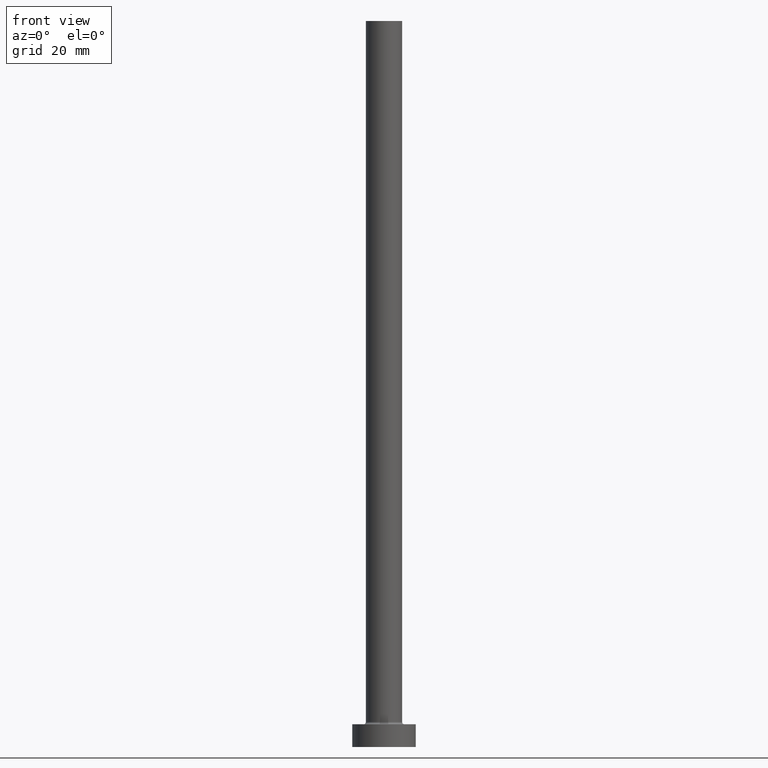
[diagram: clean part render]
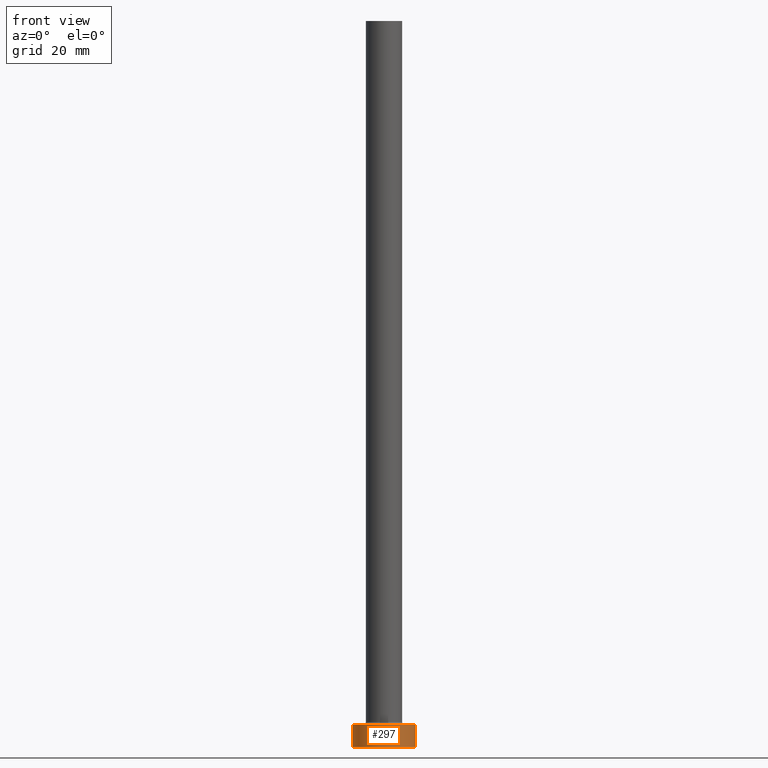
[diagram: same view with one face highlighted and labeled with its STEP entity id]
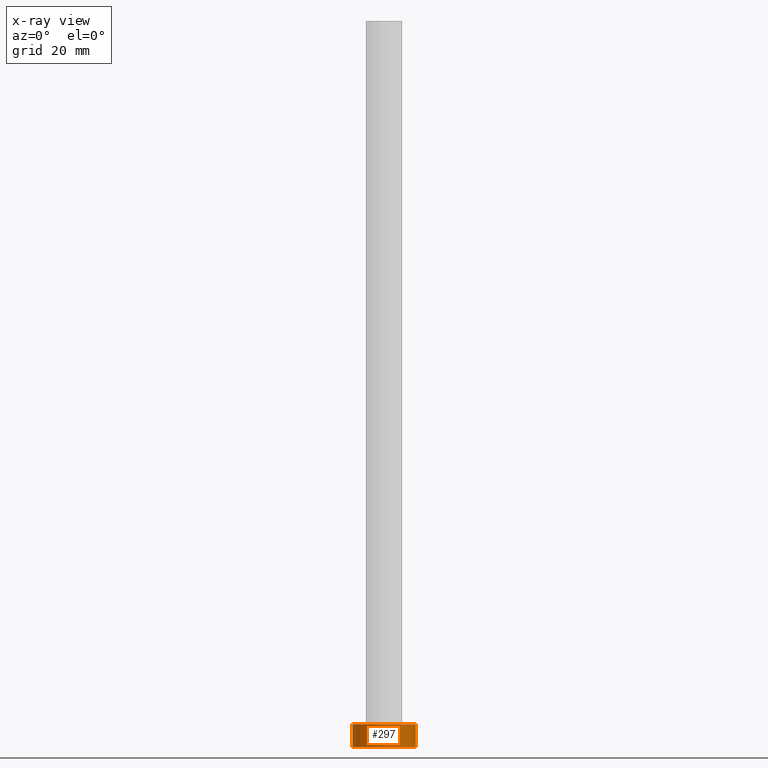
[diagram: x-ray of the same camera — body ghosted, the highlighted face saturated]
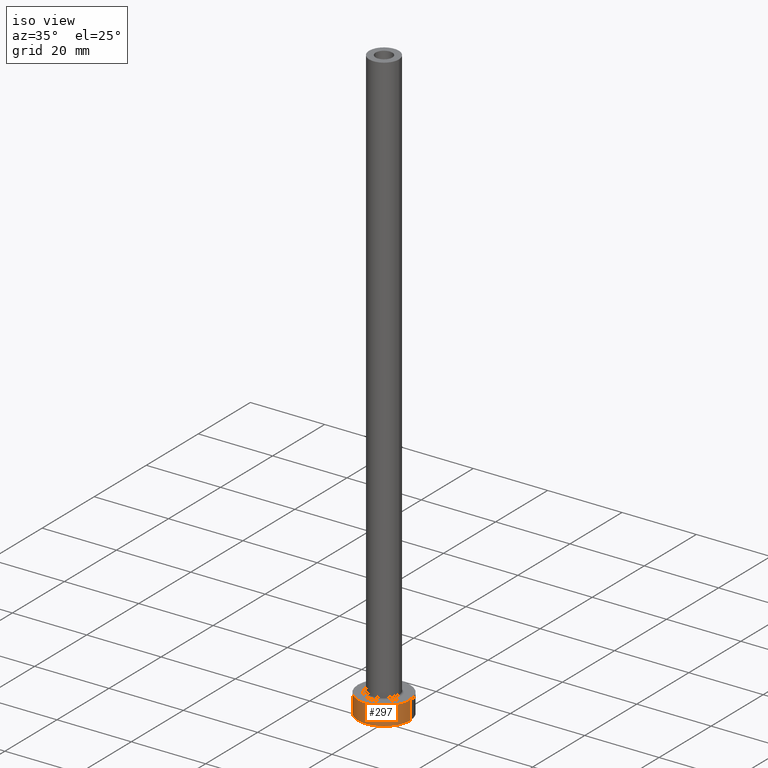
[diagram: same view with one face highlighted and labeled with its STEP entity id]
A machine part, front view. The second image highlights one B-rep face of the part: STEP entity #297.
The next image is the same camera in x-ray: the body ghosted, the highlighted face saturated — about 0% of this face is hidden behind the body in this view.
A second angle (iso view) of the same face is appended — the face is thin or edge-on in the first view.
In plain terms, the highlighted cylindrical surface (edge-blend (fillet) strip) has radius 7 mm, axis along (-0, -0, -1).
Its self-contained STEP definition (entity closure, byte-faithful):
#28 = CARTESIAN_POINT ( 'NONE',  ( 0.000000000000000000, 0.000000000000000000, 5.000000000000000000 ) ) ;
#33 = DIRECTION ( 'NONE',  ( 0.000000000000000000, 0.000000000000000000, 1.000000000000000000 ) ) ;
#49 = AXIS2_PLACEMENT_3D ( 'NONE', #222, #33, #75 ) ;
#58 = VERTEX_POINT ( 'NONE', #300 ) ;
#60 = FACE_OUTER_BOUND ( 'NONE', #449, .T. ) ;
#75 = DIRECTION ( 'NONE',  ( 1.000000000000000000, 0.000000000000000000, 0.000000000000000000 ) ) ;
#98 = ORIENTED_EDGE ( 'NONE', *, *, #244, .T. ) ;
#104 = CYLINDRICAL_SURFACE ( 'NONE', #120, 7.000000000000000000 ) ;
#105 = VECTOR ( 'NONE', #419, 1000.000000000000000 ) ;
#107 = CARTESIAN_POINT ( 'NONE',  ( -7.000000000000000000, 0.000000000000000000, 5.000000000000000000 ) ) ;
#109 = VERTEX_POINT ( 'NONE', #322 ) ;
#120 = AXIS2_PLACEMENT_3D ( 'NONE', #28, #205, #175 ) ;
#126 = DIRECTION ( 'NONE',  ( 0.000000000000000000, 0.000000000000000000, 1.000000000000000000 ) ) ;
#134 = EDGE_CURVE ( 'NONE', #109, #58, #373, .T. ) ;
#138 = CARTESIAN_POINT ( 'NONE',  ( 7.000000000000000000, 8.572527594031473190E-16, 5.000000000000000000 ) ) ;
#161 = LINE ( 'NONE', #107, #290 ) ;
#175 = DIRECTION ( 'NONE',  ( -1.000000000000000000, 0.000000000000000000, 0.000000000000000000 ) ) ;
#182 = ORIENTED_EDGE ( 'NONE', *, *, #311, .F. ) ;
#197 = CIRCLE ( 'NONE', #49, 7.000000000000000000 ) ;
#205 = DIRECTION ( 'NONE',  ( -0.000000000000000000, -0.000000000000000000, -1.000000000000000000 ) ) ;
#208 = LINE ( 'NONE', #348, #105 ) ;
#222 = CARTESIAN_POINT ( 'NONE',  ( 0.000000000000000000, 0.000000000000000000, 5.000000000000000000 ) ) ;
#237 = EDGE_CURVE ( 'NONE', #354, #58, #208, .T. ) ;
#244 = EDGE_CURVE ( 'NONE', #387, #109, #161, .T. ) ;
#275 = ORIENTED_EDGE ( 'NONE', *, *, #134, .T. ) ;
#279 = ORIENTED_EDGE ( 'NONE', *, *, #237, .F. ) ;
#284 = DIRECTION ( 'NONE',  ( -0.000000000000000000, -0.000000000000000000, -1.000000000000000000 ) ) ;
#290 = VECTOR ( 'NONE', #284, 1000.000000000000000 ) ;
#295 = CARTESIAN_POINT ( 'NONE',  ( -7.000000000000000000, 0.000000000000000000, 5.000000000000000000 ) ) ;
#297 = ADVANCED_FACE ( 'NONE', ( #60 ), #104, .T. ) ;
#300 = CARTESIAN_POINT ( 'NONE',  ( 7.000000000000000000, 8.572527594031473190E-16, 0.000000000000000000 ) ) ;
#311 = EDGE_CURVE ( 'NONE', #387, #354, #197, .T. ) ;
#322 = CARTESIAN_POINT ( 'NONE',  ( -7.000000000000000000, 0.000000000000000000, 0.000000000000000000 ) ) ;
#348 = CARTESIAN_POINT ( 'NONE',  ( 7.000000000000000000, 8.572527594031473190E-16, 5.000000000000000000 ) ) ;
#349 = CARTESIAN_POINT ( 'NONE',  ( 0.000000000000000000, 0.000000000000000000, 0.000000000000000000 ) ) ;
#354 = VERTEX_POINT ( 'NONE', #138 ) ;
#373 = CIRCLE ( 'NONE', #453, 7.000000000000000000 ) ;
#387 = VERTEX_POINT ( 'NONE', #295 ) ;
#404 = DIRECTION ( 'NONE',  ( 1.000000000000000000, 0.000000000000000000, 0.000000000000000000 ) ) ;
#419 = DIRECTION ( 'NONE',  ( -0.000000000000000000, -0.000000000000000000, -1.000000000000000000 ) ) ;
#449 = EDGE_LOOP ( 'NONE', ( #279, #182, #98, #275 ) ) ;
#453 = AXIS2_PLACEMENT_3D ( 'NONE', #349, #126, #404 ) ;